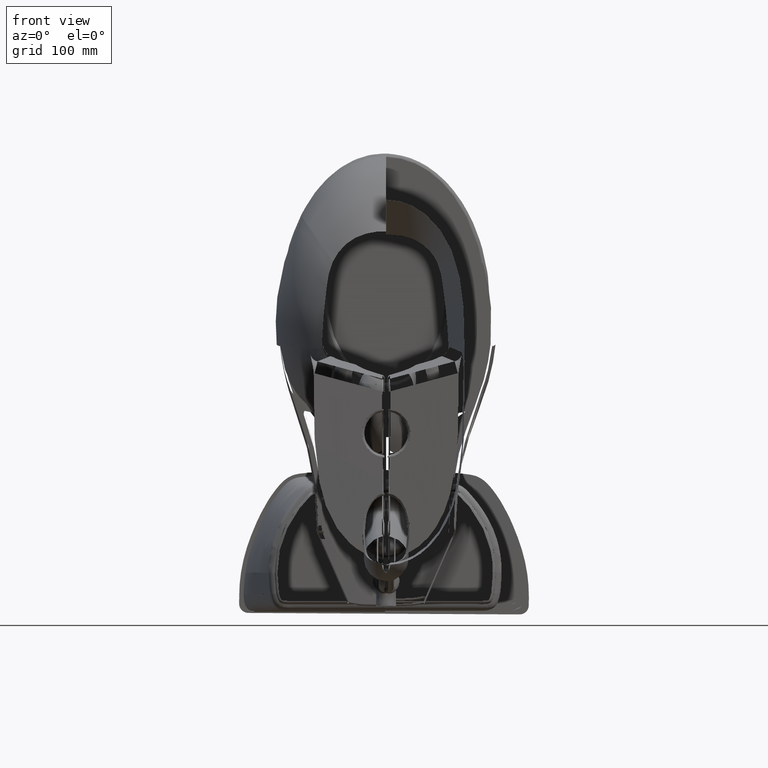
[diagram: clean part render]
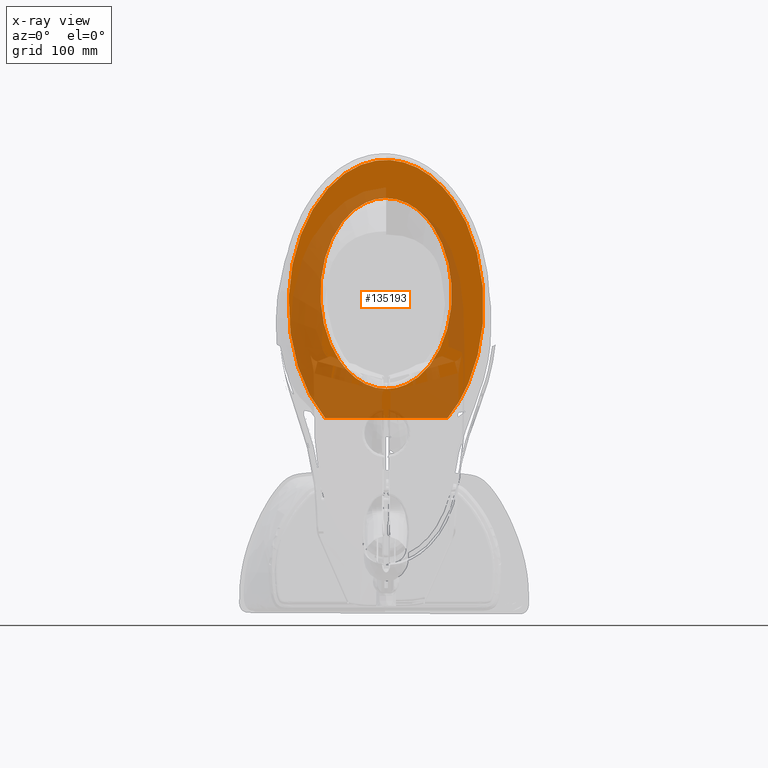
[diagram: x-ray — body ghosted, one internal face saturated and labeled with its STEP entity id]
A machine part, front view, then the same camera in x-ray: the body is ghosted and one INTERNAL B-rep face — a face not visible from any outside direction — is saturated and labeled: STEP entity #135193.
In plain terms, the highlighted planar face has unit normal (0, 1, 0.0099).
Its self-contained STEP definition (entity closure, byte-faithful):
#283 = CARTESIAN_POINT ( 'NONE',  ( -0.5448651244895642600, -11.64607814270232900, 18.04271575063285100 ) ) ;
#917 = CARTESIAN_POINT ( 'NONE',  ( 4.482733622064293000, -8.802090577654817900, 18.07095876836603300 ) ) ;
#1557 = CARTESIAN_POINT ( 'NONE',  ( 3.484143204523304100, -10.06450442116723700, 18.05842201129185700 ) ) ;
#2195 = CARTESIAN_POINT ( 'NONE',  ( 1.776936064902593600, -11.28396359750915000, 18.04631182865277600 ) ) ;
#2839 = CARTESIAN_POINT ( 'NONE',  ( 3.032028010899996400, -10.48361839509824200, 18.05425988181073600 ) ) ;
#3480 = CARTESIAN_POINT ( 'NONE',  ( 4.139498788799653700, -9.298235515574898400, 18.06603166092439500 ) ) ;
#4107 = CARTESIAN_POINT ( 'NONE',  ( 5.669181083561591400, 1.337590555119010400, 18.17165374353527000 ) ) ;
#4741 = CARTESIAN_POINT ( 'NONE',  ( 5.938813809987686400, 0.2744266397301053900, 18.16109569264948200 ) ) ;
#5362 = CARTESIAN_POINT ( 'NONE',  ( 5.709669184124258800, 1.200366766932605700, 18.17029100376817000 ) ) ;
#5849 = CARTESIAN_POINT ( 'NONE',  ( 2.026773299985472400, -8.643798790039371100, 18.07253073307834500 ) ) ;
#5997 = CARTESIAN_POINT ( 'NONE',  ( 4.692979662048218300, 3.620467852612183200, 18.19432450472717700 ) ) ;
#6216 = CARTESIAN_POINT ( 'NONE',  ( -4.194133565427494000, 4.357009125103195000, 18.20163894834461300 ) ) ;
#6471 = CARTESIAN_POINT ( 'NONE',  ( 0.5609533131787400900, 2.896723745306653400, 18.18713716427008000 ) ) ;
#6630 = CARTESIAN_POINT ( 'NONE',  ( 4.546439212595091200, 3.864184137145144000, 18.19674479854656100 ) ) ;
#6850 = CARTESIAN_POINT ( 'NONE',  ( -5.622035835466429700, 1.454933288021186000, 18.17281906378646300 ) ) ;
#7491 = CARTESIAN_POINT ( 'NONE',  ( -4.237684481748930300, 4.296621490480022800, 18.20103925188492200 ) ) ;
#7751 = CARTESIAN_POINT ( 'NONE',  ( 4.185247100731102100, -2.487537213392126300, 18.13366723028346400 ) ) ;
#8123 = CARTESIAN_POINT ( 'NONE',  ( -5.516538663983078900, 1.777472731964994100, 18.17602213299165500 ) ) ;
#8768 = CARTESIAN_POINT ( 'NONE',  ( -5.630497657057717700, 1.427885518271664800, 18.17255045825574600 ) ) ;
#9305 = CARTESIAN_POINT ( 'NONE',  ( -3.580390891632283500, -6.618777353433070900, 18.09264078972401500 ) ) ;
#9409 = CARTESIAN_POINT ( 'NONE',  ( -3.964073292970089000, -9.549267263582347500, 18.06353872977545200 ) ) ;
#10044 = CARTESIAN_POINT ( 'NONE',  ( -5.847032432429306100, -5.543144907493899400, 18.10332266553716000 ) ) ;
#10590 = CARTESIAN_POINT ( 'NONE',  ( -2.929348096177952800, -7.757038661799213300, 18.08133696239054800 ) ) ;
#10685 = CARTESIAN_POINT ( 'NONE',  ( -6.207722577056651800, -2.310861204369362800, 18.13542177525385000 ) ) ;
#11318 = CARTESIAN_POINT ( 'NONE',  ( -4.856797900266204100, -8.193771596454995500, 18.07699986478643300 ) ) ;
#11968 = CARTESIAN_POINT ( 'NONE',  ( -4.948670029156956800, -8.016614174557444600, 18.07875917688720300 ) ) ;
#12608 = CARTESIAN_POINT ( 'NONE',  ( -1.193472481276552900, -11.51113427312726300, 18.04405584982949800 ) ) ;
#13252 = CARTESIAN_POINT ( 'NONE',  ( -1.514330913360443000, -11.40338175828572700, 18.04512591713768500 ) ) ;
#13884 = CARTESIAN_POINT ( 'NONE',  ( -2.309495132627498800, -11.01813296625900700, 18.04895174048958500 ) ) ;
#14519 = CARTESIAN_POINT ( 'NONE',  ( 0.6441397022216088800, -11.62892447292998800, 18.04288609843271000 ) ) ;
#15147 = CARTESIAN_POINT ( 'NONE',  ( -0.08443063738767686600, -11.68030546105204300, 18.04237584593776600 ) ) ;
#15776 = CARTESIAN_POINT ( 'NONE',  ( 3.943891355235857000, -9.550049434710166100, 18.06353095170426200 ) ) ;
#16425 = CARTESIAN_POINT ( 'NONE',  ( 5.384711656167772800, -7.002651980076644000, 18.08882860206405100 ) ) ;
#17073 = CARTESIAN_POINT ( 'NONE',  ( 1.684087229453050700, -11.32502859369509300, 18.04590402119494300 ) ) ;
#17717 = CARTESIAN_POINT ( 'NONE',  ( 2.560154496259746000, -10.84248900499962400, 18.05069601615336000 ) ) ;
#18357 = CARTESIAN_POINT ( 'NONE',  ( 4.564387197185044300, -8.671816559213697300, 18.07225249131316900 ) ) ;
#19006 = CARTESIAN_POINT ( 'NONE',  ( 4.150016263533864000, 4.447656026534658300, 18.20253913200739100 ) ) ;
#19633 = CARTESIAN_POINT ( 'NONE',  ( 4.613383272896768100, 3.754211668461010300, 18.19565268569478900 ) ) ;
#19819 = AXIS2_PLACEMENT_3D ( 'NONE', #100053, #41799, #70964 ) ;
#20262 = CARTESIAN_POINT ( 'NONE',  ( 6.024362229227927300, -4.637109726050124600, 18.11232028888606400 ) ) ;
#20891 = CARTESIAN_POINT ( 'NONE',  ( 5.878114198297750700, -5.383687148297831000, 18.10490619043286700 ) ) ;
#23565 = CARTESIAN_POINT ( 'NONE',  ( -4.185055530901575300, -3.863041204269291700, 18.12000740924212700 ) ) ;
#23669 = CARTESIAN_POINT ( 'NONE',  ( -5.890797774561014500, 0.4547092658194275000, 18.16288605605990700 ) ) ;
#23895 = DIRECTION ( 'NONE',  ( 1.000000000000000000, -1.327403662622375700E-009, -1.341280706663420200E-009 ) ) ;
#24205 = CARTESIAN_POINT ( 'NONE',  ( -3.280464377965355300, -7.216287820149607200, 18.08670704232126200 ) ) ;
#24300 = CARTESIAN_POINT ( 'NONE',  ( -4.918144012706156900, -8.075968317828834800, 18.07816974370789300 ) ) ;
#24941 = CARTESIAN_POINT ( 'NONE',  ( -3.917877003934972600, -9.605831963854074100, 18.06297699792947900 ) ) ;
#25589 = CARTESIAN_POINT ( 'NONE',  ( -4.362709294359103900, -9.011806078525966200, 18.06887614090191000 ) ) ;
#26240 = CARTESIAN_POINT ( 'NONE',  ( -6.106644131376211400, -4.099022999966866400, 18.11766392770165300 ) ) ;
#26884 = CARTESIAN_POINT ( 'NONE',  ( -4.319769722367872200, -9.073970473057707800, 18.06825879970963600 ) ) ;
#27522 = CARTESIAN_POINT ( 'NONE',  ( 0.9872206027975373200, -11.55884740104251700, 18.04358201819715300 ) ) ;
#28172 = CARTESIAN_POINT ( 'NONE',  ( 1.346572889207221700, -11.45355012735632100, 18.04462770213420700 ) ) ;
#28657 = CARTESIAN_POINT ( 'NONE',  ( -0.03180420980437018800, -9.250078848187008900, 18.06650989989406500 ) ) ;
#28800 = CARTESIAN_POINT ( 'NONE',  ( -2.765436845307416300, -10.71316916854455500, 18.05198027050493400 ) ) ;
#29427 = CARTESIAN_POINT ( 'NONE',  ( -2.949208404455481200, -10.57236393327643500, 18.05337857703736800 ) ) ;
#30062 = CARTESIAN_POINT ( 'NONE',  ( 4.800290340583660300, -8.267056456122515900, 18.07627207589954200 ) ) ;
#30696 = CARTESIAN_POINT ( 'NONE',  ( 4.212817018123667300, -9.198098615095597500, 18.06702609869279600 ) ) ;
#31337 = CARTESIAN_POINT ( 'NONE',  ( 4.881332226055613800, -8.115808806627356400, 18.07777408343391600 ) ) ;
#31984 = CARTESIAN_POINT ( 'NONE',  ( 3.565841027208993500, -9.980823680229828900, 18.05925302649366400 ) ) ;
#32625 = CARTESIAN_POINT ( 'NONE',  ( 2.218061884033391400, -11.05732563890351700, 18.04856252053685500 ) ) ;
#33089 = EDGE_LOOP ( 'NONE', ( #121490, #86100 ) ) ;
#33268 = CARTESIAN_POINT ( 'NONE',  ( 6.051576664398919700, -4.462137126984140800, 18.11405790382648800 ) ) ;
#33896 = CARTESIAN_POINT ( 'NONE',  ( 3.907062596856586200, 4.752521363311426900, 18.20556668394560500 ) ) ;
#34537 = CARTESIAN_POINT ( 'NONE',  ( 6.197620649414067100, -2.921870342821840900, 18.12935395939416600 ) ) ;
#35170 = CARTESIAN_POINT ( 'NONE',  ( 6.077270167809374800, -4.286622340144433900, 18.11580090311826700 ) ) ;
#35646 = CARTESIAN_POINT ( 'NONE',  ( 4.006009806351968000, -1.061485767355905500, 18.14782903850236200 ) ) ;
#35803 = CARTESIAN_POINT ( 'NONE',  ( 5.865364183193151800, 0.6163876288646926700, 18.16449163325021100 ) ) ;
#36021 = CARTESIAN_POINT ( 'NONE',  ( -4.302986283769625300, 4.205063474145186200, 18.20013000914584800 ) ) ;
#36280 = CARTESIAN_POINT ( 'NONE',  ( 3.823129288363268600, -0.3787701906236614600, 18.15460893924094800 ) ) ;
#37816 = CARTESIAN_POINT ( 'NONE',  ( -0.4969714076311023700, 2.902277371506063500, 18.18719231753346200 ) ) ;
#38457 = CARTESIAN_POINT ( 'NONE',  ( -4.005835021401575900, -5.289081977925196300, 18.10584570700787300 ) ) ;
#38551 = CARTESIAN_POINT ( 'NONE',  ( -5.950305007006444500, 0.1686894856293171300, 18.16004565566304400 ) ) ;
#39097 = CARTESIAN_POINT ( 'NONE',  ( -2.527576699391731900, -8.226821487685040100, 18.07667165038386200 ) ) ;
#39191 = CARTESIAN_POINT ( 'NONE',  ( -4.650720700023007300, -8.558157968110141000, 18.07338122239388100 ) ) ;
#39836 = CARTESIAN_POINT ( 'NONE',  ( -3.933350860428032300, -9.587008392853945800, 18.06316393075582000 ) ) ;
#40477 = CARTESIAN_POINT ( 'NONE',  ( -5.356798223458125300, -7.113720043762201700, 18.08772562344572400 ) ) ;
#41113 = CARTESIAN_POINT ( 'NONE',  ( -5.961636066608784600, 0.1111797179822387200, 18.15947453863406500 ) ) ;
#41662 = EDGE_CURVE ( 'NONE', #151989, #168138, #165470, .T. ) ;
#41754 = CARTESIAN_POINT ( 'NONE',  ( -2.738955349145451500, -10.73263650569613700, 18.05178694456178000 ) ) ;
#41799 = DIRECTION ( 'NONE',  ( 1.327603848764030500E-009, -0.009930293714449041400, 0.9999506934178028500 ) ) ;
#42395 = CARTESIAN_POINT ( 'NONE',  ( 1.233541097527991200, -11.49029213614324100, 18.04426282535452200 ) ) ;
#43034 = CARTESIAN_POINT ( 'NONE',  ( -1.906124353629065300, -11.23558597024193000, 18.04679226127888500 ) ) ;
#43658 = CARTESIAN_POINT ( 'NONE',  ( -2.712392576124709600, -10.75200774050434300, 18.05159457299007600 ) ) ;
#44292 = CARTESIAN_POINT ( 'NONE',  ( -0.9460209764356217700, -11.57420544643136000, 18.04342950334215000 ) ) ;
#44915 = CARTESIAN_POINT ( 'NONE',  ( 2.435342477242716400, -10.92618675599255700, 18.04986483208561800 ) ) ;
#45549 = CARTESIAN_POINT ( 'NONE',  ( 1.795403946042124500, -11.27557139341021400, 18.04639516978914300 ) ) ;
#46201 = CARTESIAN_POINT ( 'NONE',  ( 2.980629941739805200, -10.52670108700455200, 18.05383203699877000 ) ) ;
#46850 = CARTESIAN_POINT ( 'NONE',  ( 4.550896725205750400, -8.693616116899290700, 18.07203600464619300 ) ) ;
#47488 = CARTESIAN_POINT ( 'NONE',  ( 3.435110802413475600, -10.11388345879322300, 18.05793163883139500 ) ) ;
#48128 = CARTESIAN_POINT ( 'NONE',  ( 6.147941679423954800, -1.127914392745287300, 18.14716934737105100 ) ) ;
#48775 = CARTESIAN_POINT ( 'NONE',  ( 6.184686987351477100, -1.604890195950797300, 18.14243260394912500 ) ) ;
#49410 = CARTESIAN_POINT ( 'NONE',  ( 6.051898496316543900, -0.3632169908240746600, 18.15476339173869000 ) ) ;
#49901 = CARTESIAN_POINT ( 'NONE',  ( 2.086347469669645800, 2.270670006669409900, 18.18091995818897600 ) ) ;
#50049 = CARTESIAN_POINT ( 'NONE',  ( 5.263786669210015000, 2.470770787255068200, 18.18290711147510000 ) ) ;
#50259 = CARTESIAN_POINT ( 'NONE',  ( -4.388427821594895300, 4.080608014523469300, 18.19889406905088300 ) ) ;
#50530 = CARTESIAN_POINT ( 'NONE',  ( 2.929355849685826700, 1.406661784264488200, 18.17233967858464900 ) ) ;
#50654 = VERTEX_POINT ( 'NONE', #64208 ) ;
#50676 = CARTESIAN_POINT ( 'NONE',  ( 6.117016773030992600, -3.992281599507463000, 18.11872393719696800 ) ) ;
#50902 = CARTESIAN_POINT ( 'NONE',  ( -5.010941201580402900, 2.995950589806834600, 18.18812257196463700 ) ) ;
#51169 = CARTESIAN_POINT ( 'NONE',  ( 3.788687579485708700, -6.024126391377953900, 18.09854612982401500 ) ) ;
#51800 = CARTESIAN_POINT ( 'NONE',  ( 1.602890789431929300, 2.579542861263110600, 18.18398730823937000 ) ) ;
#52800 = CARTESIAN_POINT ( 'NONE',  ( -5.604893030555656400, 1.509048162536243300, 18.17335646685947000 ) ) ;
#53347 = CARTESIAN_POINT ( 'NONE',  ( -1.541008923091338900, 2.596312659326811100, 18.18415384964448800 ) ) ;
#53445 = CARTESIAN_POINT ( 'NONE',  ( -6.120553998876991900, -3.980945992697132700, 18.11883652489998700 ) ) ;
#53983 = CARTESIAN_POINT ( 'NONE',  ( -2.876734547641732300, 1.441351934757008100, 18.17268418666535400 ) ) ;
#54079 = CARTESIAN_POINT ( 'NONE',  ( -6.152556197127018400, -1.235859611355035700, 18.14609738312048400 ) ) ;
#54712 = CARTESIAN_POINT ( 'NONE',  ( -6.141398892070872000, -1.117206631990683300, 18.14727570013963700 ) ) ;
#55363 = CARTESIAN_POINT ( 'NONE',  ( -4.543616812031787700, -8.734958391178295800, 18.07162545555091200 ) ) ;
#56001 = CARTESIAN_POINT ( 'NONE',  ( -5.687131060239137200, -6.156579943445893700, 18.09723077487282300 ) ) ;
#56641 = CARTESIAN_POINT ( 'NONE',  ( -1.961734229001503600, -11.20867829158536100, 18.04705947568037400 ) ) ;
#57280 = CARTESIAN_POINT ( 'NONE',  ( -1.850315802071199400, -11.26201071498430500, 18.04652984278921900 ) ) ;
#57922 = CARTESIAN_POINT ( 'NONE',  ( -1.401101005524625800, -11.44384750676408800, 18.04472406040540700 ) ) ;
#58554 = CARTESIAN_POINT ( 'NONE',  ( -1.306902031502606300, -11.47588500163686700, 18.04440590285912900 ) ) ;
#59181 = CARTESIAN_POINT ( 'NONE',  ( -2.632994330516809100, -10.80933158367501800, 18.05102530221634200 ) ) ;
#59815 = CARTESIAN_POINT ( 'NONE',  ( 1.739823094847456900, -11.30054703445587800, 18.04614714218224200 ) ) ;
#60466 = CARTESIAN_POINT ( 'NONE',  ( 3.269781957239547200, -10.27462189066112200, 18.05633538050519200 ) ) ;
#61112 = CARTESIAN_POINT ( 'NONE',  ( 5.409433682857771200, -6.937653531808237500, 18.08947408754020000 ) ) ;
#61755 = CARTESIAN_POINT ( 'NONE',  ( 4.631833489077615200, -8.561776847880572900, 18.07334527175868600 ) ) ;
#62395 = CARTESIAN_POINT ( 'NONE',  ( 3.467870769966432800, -10.08100312040593500, 18.05825816630547500 ) ) ;
#63035 = CARTESIAN_POINT ( 'NONE',  ( 4.783887678717744200, 3.462168416514836100, 18.19275246719941900 ) ) ;
#63657 = CARTESIAN_POINT ( 'NONE',  ( 6.023045067000296600, -0.1886610949754344600, 18.15649686856417600 ) ) ;
#63681 = VECTOR ( 'NONE', #23895, 39.37007874015748100 ) ;
#64208 = CARTESIAN_POINT ( 'NONE',  ( -3.886152463397930300, 4.752521373657540200, 18.20556669439515900 ) ) ;
#64300 = CARTESIAN_POINT ( 'NONE',  ( 6.068964452863428800, -4.345178402974688900, 18.11521939555447200 ) ) ;
#64945 = CARTESIAN_POINT ( 'NONE',  ( 5.075567926906658500, 2.894149184537824700, 18.18711159087086000 ) ) ;
#65431 = CARTESIAN_POINT ( 'NONE',  ( 3.233077766713740300, -7.257415581452756100, 18.08629860278543300 ) ) ;
#65579 = CARTESIAN_POINT ( 'NONE',  ( 4.932593948087813400, 3.181809200398992000, 18.18996828036167900 ) ) ;
#65796 = CARTESIAN_POINT ( 'NONE',  ( -5.259272581576704300, 2.452949311267174500, 18.18273014422892300 ) ) ;
#67604 = CARTESIAN_POINT ( 'NONE',  ( -3.232860833485826200, 0.9068427813972440600, 18.16737609252677300 ) ) ;
#68231 = CARTESIAN_POINT ( 'NONE',  ( -3.822878990917323100, -5.971850777145669500, 18.09906527772992400 ) ) ;
#68328 = CARTESIAN_POINT ( 'NONE',  ( -5.860443193379018600, -5.486613963679213100, 18.10388406211154000 ) ) ;
#68874 = CARTESIAN_POINT ( 'NONE',  ( -0.5607690683287401800, -9.247300734992126800, 18.06653748943661600 ) ) ;
#68978 = CARTESIAN_POINT ( 'NONE',  ( -5.565800701894851000, -6.533838862361220900, 18.09348429811455700 ) ) ;
#69524 = CARTESIAN_POINT ( 'NONE',  ( -2.086162151330314800, -8.621185254019685800, 18.07275530866614600 ) ) ;
#69620 = CARTESIAN_POINT ( 'NONE',  ( -3.586133815896591400, -9.981320495261753600, 18.05924810222666100 ) ) ;
#70262 = CARTESIAN_POINT ( 'NONE',  ( -4.276514051212129400, -9.135793769378755900, 18.06764484588938300 ) ) ;
#70336 = B_SPLINE_CURVE_WITH_KNOTS ( 'NONE', 13,
 ( #97362, #37816, #141370, #53347, #112209, #171689, #53983, #67604, #96709, #186542, #171064, #185907, #172337, #23565, #113481, #38457, #68231, #9305, #24205, #10590, #39097, #69524, #142649, #157482, #68874, #140726 ),
 .UNSPECIFIED., .F., .F.,
 ( 14, 12, 14 ),
 ( 0.0000000000000000000, 0.5000000000000001100, 1.000000000000000000 ),
 .UNSPECIFIED. ) ;
#70918 = CARTESIAN_POINT ( 'NONE',  ( -5.967200772684504900, 0.08242196689736407100, 18.15918895164529800 ) ) ;
#70964 = DIRECTION ( 'NONE',  ( 0.0000000000000000000, -0.9999506934178028500, -0.009930293714449041400 ) ) ;
#71555 = CARTESIAN_POINT ( 'NONE',  ( 0.8728604227675442800, -11.58473606781854800, 18.04332492360756400 ) ) ;
#72193 = CARTESIAN_POINT ( 'NONE',  ( -1.003299734375848500, -11.56069535716844100, 18.04356366918794300 ) ) ;
#72814 = CARTESIAN_POINT ( 'NONE',  ( -2.721279264439030700, -10.74555304508689700, 18.05165867318376600 ) ) ;
#73453 = CARTESIAN_POINT ( 'NONE',  ( -0.3147849885883642300, -11.66990300959234600, 18.04247915073554500 ) ) ;
#74087 = CARTESIAN_POINT ( 'NONE',  ( -0.7363338865150610400, -11.61789472861282100, 18.04299563426693700 ) ) ;
#74718 = CARTESIAN_POINT ( 'NONE',  ( 4.875185321866936800, -8.127468803017333000, 18.07765829054386200 ) ) ;
#75360 = CARTESIAN_POINT ( 'NONE',  ( 3.866412745605972000, -9.643050231929724000, 18.06260738103694800 ) ) ;
#76002 = CARTESIAN_POINT ( 'NONE',  ( 5.497759025193626100, -6.702085994625823800, 18.09181345760310600 ) ) ;
#76653 = CARTESIAN_POINT ( 'NONE',  ( 4.711006441710919600, -8.427529072844583500, 18.07467845722500500 ) ) ;
#77292 = CARTESIAN_POINT ( 'NONE',  ( 4.035375401309022600, -9.435892261953656000, 18.06466462173529000 ) ) ;
#77924 = CARTESIAN_POINT ( 'NONE',  ( 4.859138170023006100, 3.323190308630628000, 18.19137230561730000 ) ) ;
#78218 = B_SPLINE_CURVE_WITH_KNOTS ( 'NONE', 3,
 ( #153781, #138923, #95549, #169881, #6216, #81291, #109764, #7491, #36021, #50259, #124673, #125949, #154414, #140827, #80657, #139549, #155688, #50902, #170513, #81926, #185368, #82560, #96811, #65796, #169242, #8123, #111670, #52800, #6850, #8768, #156321, #186006, #23669, #83202, #38551, #41113, #70918, #85781, #99363, #156951, #54712, #54079, #143384, #112958, #10685, #114873, #144659, #98733, #127840, #53445, #26240, #187925, #172428, #100640, #100009, #144026, #68328, #10044, #84485, #114221, #56001, #68978, #173689, #159492, #174349, #113575, #40477, #188555, #171798, #189207, #11968, #83840, #24300, #115518, #11318, #129757, #142747, #39191, #158840, #186640, #55363, #128475, #25589, #26884, #129114, #70262, #142111, #85127, #98105, #9409, #39836, #24941, #157584, #187284, #158219, #69620, #173062, #86435, #176268, #189853, #103823, #161417, #190497, #160784, #177530, #118066, #29427, #88328, #28800, #41754, #72814, #43658, #59181, #145938, #88958, #162683, #13884, #162049, #132323, #174993, #118704, #56641, #43034, #146571, #57280, #87697, #191125, #13252, #132950, #147200, #57922, #58554, #12608, #117429, #72193, #101939, #44292, #191745, #74087, #147829, #283, #101297, #131683, #73453, #102569, #15147, #130405, #176898, #116164, #160143, #103186, #14519, #145294, #175627, #71555, #27522, #131044, #42395, #87069, #116789, #28172, #180723, #150382, #17073, #59815, #2195, #45549, #134880, #104465, #105720, #106362, #32625, #90226, #119336, #44915, #17717, #179444, #163946, #92147, #91507, #135506, #46201, #2839, #121271, #136151, #178801, #60466, #165226, #47488, #62395, #1557, #31984, #180075, #163308, #151026, #165865, #75360, #15776, #77292, #3480, #107020, #30696, #90877, #134232, #120623, #917, #119961, #46850, #18357, #61755, #76653, #30062, #133588, #148468, #74718, #31337, #105086, #178170, #89579, #149088, #16425, #149739, #61112, #164585, #76002, #94064, #152933, #181994, #152292, #169035, #109548, #20891, #79813, #20262, #33268, #64300, #35170, #50676, #137434, #80434, #154199, #34537, #167757, #124446, #183259, #48775, #48128, #138066, #49410, #63657, #79184, #182625, #4741, #35803, #138703, #5362, #123825, #4107, #108926, #167130, #93436, #78550, #50049, #108286, #151663, #123206, #166496, #153562, #64945, #168400, #139332, #65579, #94695, #77924, #63035, #5997, #183878, #95328, #19633, #6630, #110166, #121908, #136797, #181351, #92802, #107648, #19006, #122555, #33896 ),
 .UNSPECIFIED., .F., .F.,
 ( 4, 1, 1, 1, 2, 2, 1, 1, 1, 2, 2, 1, 1, 1, 1, 2, 2, 1, 1, 1, 2, 2, 1, 1, 1, 2, 2, 1, 2, 2, 2, 2, 1, 1, 2, 2, 1, 1, 1, 2, 2, 1, 1, 1, 2, 2, 1, 1, 1, 1, 2, 2, 1, 1, 2, 2, 1, 1, 2, 2, 1, 1, 2, 2, 1, 1, 2, 2, 1, 1, 1, 2, 2, 1, 1, 1, 2, 2, 1, 1, 1, 2, 2, 1, 1, 2, 2, 1, 1, 2, 2, 1, 1, 2, 2, 1, 2, 2, 2, 2, 2, 2, 1, 2, 2, 1, 1, 2, 2, 1, 1, 2, 2, 1, 1, 2, 2, 1, 1, 2, 2, 1, 1, 2, 2, 1, 1, 2, 2, 1, 1, 2, 2, 1, 1, 2, 2, 1, 1, 2, 2, 1, 1, 1, 2, 2, 1, 1, 1, 1, 2, 2, 1, 1, 1, 2, 2, 1, 1, 2, 2, 1, 2, 2, 2, 2, 1, 1, 2, 2, 1, 1, 1, 2, 2, 1, 1, 1, 1, 2, 2, 1, 1, 2, 2, 1, 1, 2, 2, 1, 1, 1, 2, 2, 4 ),
 ( 0.0000000000000000000, 0.007812500000000171700, 0.01171875000000022700, 0.01367187500000025700, 0.01464843750000025500, 0.01562500000000025000, 0.02343750000000033000, 0.02734375000000037100, 0.02929687500000038200, 0.03027343750000037800, 0.03125000000000037500, 0.04687500000000013900, 0.05468750000000003500, 0.05859374999999998600, 0.06054687499999995800, 0.06152343749999991000, 0.06249999999999986100, 0.07812499999999957000, 0.08593749999999941700, 0.08984374999999934800, 0.09179687499999930600, 0.09374999999999926400, 0.1093749999999990400, 0.1171874999999989500, 0.1210937499999988900, 0.1230468749999988600, 0.1249999999999988300, 0.1406249999999986400, 0.1484374999999985600, 0.1562499999999984500, 0.1718749999999982800, 0.1874999999999981100, 0.2031249999999979700, 0.2109374999999978900, 0.2148437499999978600, 0.2187499999999978400, 0.2343749999999977200, 0.2421874999999976400, 0.2460937499999975600, 0.2480468749999975000, 0.2499999999999974700, 0.2656249999999970600, 0.2734374999999968900, 0.2773437499999968400, 0.2792968749999967800, 0.2812499999999966700, 0.2968749999999966100, 0.3046874999999966100, 0.3085937499999965600, 0.3105468749999966100, 0.3115234374999966700, 0.3124999999999967800, 0.3203124999999976100, 0.3242187499999980000, 0.3261718749999981700, 0.3281249999999983300, 0.3359374999999991100, 0.3398437499999995000, 0.3417968749999996100, 0.3437499999999997800, 0.3515625000000003300, 0.3554687500000006700, 0.3574218750000008900, 0.3593750000000010500, 0.3671875000000017800, 0.3710937500000022200, 0.3730468750000023900, 0.3750000000000025000, 0.3828125000000032800, 0.3867187500000035500, 0.3886718750000036600, 0.3896484375000036600, 0.3906250000000037200, 0.3984375000000033900, 0.4023437500000031600, 0.4042968750000030000, 0.4052734375000028900, 0.4062500000000028300, 0.4140625000000017800, 0.4179687500000012800, 0.4199218750000010000, 0.4208984375000009400, 0.4218750000000008300, 0.4296874999999998300, 0.4335937499999992800, 0.4355468749999989500, 0.4374999999999986700, 0.4453124999999974500, 0.4492187499999968400, 0.4511718749999965600, 0.4531249999999962300, 0.4609374999999953400, 0.4648437499999947800, 0.4667968749999945600, 0.4687499999999943400, 0.4765624999999933900, 0.4804687499999928900, 0.4843749999999924500, 0.4921874999999915100, 0.4999999999999905600, 0.5078124999999896700, 0.5156249999999886800, 0.5234374999999877900, 0.5273437499999872300, 0.5312499999999867900, 0.5390624999999859000, 0.5429687499999854600, 0.5449218749999852300, 0.5468749999999850100, 0.5546874999999843500, 0.5585937499999840100, 0.5605468749999837900, 0.5624999999999835700, 0.5703124999999830100, 0.5742187499999826800, 0.5761718749999824600, 0.5781249999999822400, 0.5859374999999813500, 0.5898437499999810200, 0.5917968749999807900, 0.5937499999999806800, 0.6015624999999799000, 0.6054687499999795700, 0.6074218749999793500, 0.6093749999999792400, 0.6171874999999786800, 0.6210937499999785700, 0.6230468749999784600, 0.6249999999999784600, 0.6328124999999782400, 0.6367187499999782400, 0.6386718749999781300, 0.6406249999999781300, 0.6484374999999779100, 0.6523437499999779100, 0.6542968749999779100, 0.6562499999999778000, 0.6640624999999773500, 0.6679687499999772400, 0.6699218749999772400, 0.6718749999999771300, 0.6796874999999770200, 0.6835937499999769100, 0.6855468749999769100, 0.6865234374999769100, 0.6874999999999769100, 0.7031249999999780200, 0.7109374999999785700, 0.7148437499999789100, 0.7167968749999790200, 0.7177734374999790200, 0.7187499999999790200, 0.7343749999999804600, 0.7421874999999812400, 0.7460937499999815700, 0.7480468749999816800, 0.7499999999999817900, 0.7656249999999830100, 0.7734374999999835700, 0.7773437499999839000, 0.7812499999999842300, 0.7968749999999852300, 0.8046874999999856800, 0.8124999999999862300, 0.8281249999999872300, 0.8437499999999882300, 0.8593749999999892300, 0.8671874999999897900, 0.8710937499999900100, 0.8749999999999903400, 0.8906249999999913400, 0.8984374999999919000, 0.9023437499999922300, 0.9042968749999923400, 0.9062499999999924500, 0.9218749999999936700, 0.9296874999999941200, 0.9335937499999944500, 0.9355468749999945600, 0.9365234374999945600, 0.9374999999999946700, 0.9453124999999952300, 0.9492187499999955600, 0.9511718749999956700, 0.9531249999999958900, 0.9609374999999963400, 0.9648437499999966700, 0.9667968749999967800, 0.9687499999999970000, 0.9765624999999975600, 0.9804687499999978900, 0.9824218749999981100, 0.9833984374999982200, 0.9843749999999983300, 1.000000000000000000 ),
 .UNSPECIFIED. ) ;
#78550 = CARTESIAN_POINT ( 'NONE',  ( 5.337601598915662200, 2.292651039949825000, 18.18113824275314600 ) ) ;
#78930 = FACE_BOUND ( 'NONE', #166552, .T. ) ;
#79184 = CARTESIAN_POINT ( 'NONE',  ( 6.003036424951337900, -0.07251152494062232400, 18.15765032480897600 ) ) ;
#79813 = CARTESIAN_POINT ( 'NONE',  ( 5.952932613175962100, -5.042120715233389600, 18.10829821258588600 ) ) ;
#80288 = CARTESIAN_POINT ( 'NONE',  ( 4.109234914462598800, -4.641234959500000200, 18.11227932462874100 ) ) ;
#80434 = CARTESIAN_POINT ( 'NONE',  ( 6.179605527903871300, -3.280168391704249200, 18.12579577911364800 ) ) ;
#80657 = CARTESIAN_POINT ( 'NONE',  ( -4.573441045289281500, 3.790148495237110700, 18.19600957873348400 ) ) ;
#80924 = CARTESIAN_POINT ( 'NONE',  ( 3.979625806885827000, -5.345543099090551900, 18.10528499324291500 ) ) ;
#81291 = CARTESIAN_POINT ( 'NONE',  ( -4.215954278316691500, 4.326848144590779400, 18.20133942620996900 ) ) ;
#81553 = CARTESIAN_POINT ( 'NONE',  ( 3.539045391214685300, -6.665823419377953300, 18.09217357598268100 ) ) ;
#81926 = CARTESIAN_POINT ( 'NONE',  ( -5.131229248788962100, 2.739478212392987700, 18.18557560050451000 ) ) ;
#82560 = CARTESIAN_POINT ( 'NONE',  ( -5.159165427426235500, 2.677605804007449300, 18.18496115905750100 ) ) ;
#83202 = CARTESIAN_POINT ( 'NONE',  ( -5.933032423948057000, 0.2548061637407143000, 18.16090086171475100 ) ) ;
#83840 = CARTESIAN_POINT ( 'NONE',  ( -4.930378853716071300, -8.052250295899760600, 18.07840528226181600 ) ) ;
#84485 = CARTESIAN_POINT ( 'NONE',  ( -5.840219663517867600, -5.571423709402339800, 18.10304183487246700 ) ) ;
#85127 = CARTESIAN_POINT ( 'NONE',  ( -4.115732112283251500, -9.357251426277725800, 18.06544559766018300 ) ) ;
#85781 = CARTESIAN_POINT ( 'NONE',  ( -6.016614011530201400, -0.1776779423954614700, 18.15660595585782000 ) ) ;
#86100 = ORIENTED_EDGE ( 'NONE', *, *, #107567, .F. ) ;
#86435 = CARTESIAN_POINT ( 'NONE',  ( -3.537319885067235600, -10.03230599533216800, 18.05874177620577500 ) ) ;
#87069 = CARTESIAN_POINT ( 'NONE',  ( 1.290115486287172000, -11.47217691989886900, 18.04444272356759500 ) ) ;
#87697 = CARTESIAN_POINT ( 'NONE',  ( -1.757585390473218400, -11.30472444456370900, 18.04610566187082900 ) ) ;
#88146 = EDGE_CURVE ( 'NONE', #50654, #101593, #78218, .T. ) ;
#88328 = CARTESIAN_POINT ( 'NONE',  ( -2.826998586734997600, -10.66709768539938200, 18.05243779650519200 ) ) ;
#88958 = CARTESIAN_POINT ( 'NONE',  ( -2.400178617863344400, -10.96298691312862400, 18.04949938411718300 ) ) ;
#89579 = CARTESIAN_POINT ( 'NONE',  ( 5.277737623854363000, -7.272588299143845500, 18.08614792309841600 ) ) ;
#90226 = CARTESIAN_POINT ( 'NONE',  ( 2.236135919288392900, -11.04684531219065100, 18.04866659836707000 ) ) ;
#90877 = CARTESIAN_POINT ( 'NONE',  ( 4.227339973540845900, -9.177958697402958800, 18.06722610383316800 ) ) ;
#91507 = CARTESIAN_POINT ( 'NONE',  ( 2.754711074826934300, -10.70419018625962900, 18.05206943150393800 ) ) ;
#92147 = CARTESIAN_POINT ( 'NONE',  ( 2.666279579081511500, -10.76801911585418900, 18.05143556034896300 ) ) ;
#92802 = CARTESIAN_POINT ( 'NONE',  ( 4.279945756892176200, 4.264592653578849200, 18.20072116913554800 ) ) ;
#93436 = CARTESIAN_POINT ( 'NONE',  ( 5.478033024131749000, 1.930587042084033400, 18.17754266343875400 ) ) ;
#94064 = CARTESIAN_POINT ( 'NONE',  ( 5.607019643519140400, -6.382139843273298800, 18.09499077337635600 ) ) ;
#94695 = CARTESIAN_POINT ( 'NONE',  ( 4.920363209532920800, 3.205545842647335300, 18.19020400382995100 ) ) ;
#95179 = CARTESIAN_POINT ( 'NONE',  ( 3.580453158162322700, 0.2683041862341338800, 18.16103489501968200 ) ) ;
#95328 = CARTESIAN_POINT ( 'NONE',  ( 4.626784216669329400, 3.731983908728191900, 18.19543194661035600 ) ) ;
#95549 = CARTESIAN_POINT ( 'NONE',  ( -4.039113757764234900, 4.564248335263844300, 18.20369699584014000 ) ) ;
#95809 = CARTESIAN_POINT ( 'NONE',  ( 0.03198855563507874800, 2.899500548392874900, 18.18716474080232000 ) ) ;
#96445 = CARTESIAN_POINT ( 'NONE',  ( 1.541212764578582700, -8.946892139338583400, 18.06952077933110300 ) ) ;
#96709 = CARTESIAN_POINT ( 'NONE',  ( -3.538870850459054900, 0.3152401226457874400, 18.16150101509055400 ) ) ;
#96811 = CARTESIAN_POINT ( 'NONE',  ( -5.164696718294014700, 2.665253663363693600, 18.18483849263199300 ) ) ;
#97362 = CARTESIAN_POINT ( 'NONE',  ( 0.03198855563507874800, 2.899500548392874900, 18.18716474080232000 ) ) ;
#98105 = CARTESIAN_POINT ( 'NONE',  ( -4.009967908551193900, -9.492335228615596400, 18.06410410954231000 ) ) ;
#98733 = CARTESIAN_POINT ( 'NONE',  ( -6.177981190194789600, -3.388495720150730900, 18.12472002028887600 ) ) ;
#99363 = CARTESIAN_POINT ( 'NONE',  ( -6.073242578108382100, -0.5271558236543106800, 18.15313536680251600 ) ) ;
#100009 = CARTESIAN_POINT ( 'NONE',  ( -5.924561468911476500, -5.202763652492162500, 18.10670291814584600 ) ) ;
#100053 = CARTESIAN_POINT ( 'NONE',  ( 9.578613704956692000E-005, -2.432666698077165600, 18.13421214304094400 ) ) ;
#100640 = CARTESIAN_POINT ( 'NONE',  ( -6.005179566841555100, -4.801647597534269200, 18.11068631489986600 ) ) ;
#101297 = CARTESIAN_POINT ( 'NONE',  ( -0.5064310964357073800, -11.65086686141780000, 18.04266819485365000 ) ) ;
#101593 = VERTEX_POINT ( 'NONE', #152322 ) ;
#101939 = CARTESIAN_POINT ( 'NONE',  ( -0.9651642331341352400, -11.56978201236780800, 18.04347343153299500 ) ) ;
#102569 = CARTESIAN_POINT ( 'NONE',  ( -0.1612890311343314600, -11.67826801076759200, 18.04239607951720700 ) ) ;
#103186 = CARTESIAN_POINT ( 'NONE',  ( 0.5293434316739649100, -11.64515456251827000, 18.04272492108138700 ) ) ;
#103823 = CARTESIAN_POINT ( 'NONE',  ( -3.239424177500362500, -10.32220875522058100, 18.05586281430419100 ) ) ;
#104356 = FACE_OUTER_BOUND ( 'NONE', #33089, .T. ) ;
#104465 = CARTESIAN_POINT ( 'NONE',  ( 1.999075994054235700, -11.17803844499968100, 18.04736374810059000 ) ) ;
#105086 = CARTESIAN_POINT ( 'NONE',  ( 4.986488267386350000, -7.915348621951245000, 18.07976480996211800 ) ) ;
#105720 = CARTESIAN_POINT ( 'NONE',  ( 2.127104279108289900, -11.10890347360448500, 18.04805031235464000 ) ) ;
#106362 = CARTESIAN_POINT ( 'NONE',  ( 2.181713512894892100, -11.07811176423866300, 18.04835609807736300 ) ) ;
#107020 = CARTESIAN_POINT ( 'NONE',  ( 4.183564240668197900, -9.238281186091974500, 18.06662705432393100 ) ) ;
#107567 = EDGE_CURVE ( 'NONE', #50654, #101593, #142410, .T. ) ;
#107648 = CARTESIAN_POINT ( 'NONE',  ( 4.272691308827675400, 4.274860020383087500, 18.20082313214066600 ) ) ;
#108286 = CARTESIAN_POINT ( 'NONE',  ( 5.225979400082790600, 2.559102598000786000, 18.18378431560226000 ) ) ;
#108926 = CARTESIAN_POINT ( 'NONE',  ( 5.660914772917213800, 1.365025104157839600, 18.17192619010952700 ) ) ;
#109548 = CARTESIAN_POINT ( 'NONE',  ( 5.815203872293683900, -5.637069051406980300, 18.10238990972738900 ) ) ;
#109764 = CARTESIAN_POINT ( 'NONE',  ( -4.230470470345695200, 4.306687931005277500, 18.20113921951549000 ) ) ;
#110166 = CARTESIAN_POINT ( 'NONE',  ( 4.464457860021122200, 3.993769909497538100, 18.19803168688813200 ) ) ;
#111670 = CARTESIAN_POINT ( 'NONE',  ( -5.578923306219944100, 1.590012428843035300, 18.17416050541419300 ) ) ;
#112209 = CARTESIAN_POINT ( 'NONE',  ( -2.026598038834645600, 2.293226263341378200, 18.18114396494960500 ) ) ;
#112958 = CARTESIAN_POINT ( 'NONE',  ( -6.194393294587890800, -1.832434155594453200, 18.14017293061466100 ) ) ;
#113481 = CARTESIAN_POINT ( 'NONE',  ( -4.126843873720472000, -4.581896283988188900, 18.11286861509566700 ) ) ;
#113575 = CARTESIAN_POINT ( 'NONE',  ( -5.444187773025245900, -6.878276943482847900, 18.09006375798598000 ) ) ;
#114221 = CARTESIAN_POINT ( 'NONE',  ( -5.778280983920655700, -5.824651664395044100, 18.10052708282661600 ) ) ;
#114873 = CARTESIAN_POINT ( 'NONE',  ( -6.208091903216043800, -2.550497939391291000, 18.13304199475195900 ) ) ;
#115518 = CARTESIAN_POINT ( 'NONE',  ( -4.911979358791764800, -8.087859208165980400, 18.07805165784372300 ) ) ;
#116164 = CARTESIAN_POINT ( 'NONE',  ( 0.2993714979028049300, -11.66905417351255800, 18.04248757952736400 ) ) ;
#116789 = CARTESIAN_POINT ( 'NONE',  ( 1.327800683857097900, -11.45983493558947900, 18.04456528909007000 ) ) ;
#117402 = ORIENTED_EDGE ( 'NONE', *, *, #41662, .F. ) ;
#117429 = CARTESIAN_POINT ( 'NONE',  ( -1.060454138563462500, -11.54666590907479000, 18.04370299267360900 ) ) ;
#118066 = CARTESIAN_POINT ( 'NONE',  ( -3.052393393699308200, -10.48672222717231700, 18.05422906640490400 ) ) ;
#118704 = CARTESIAN_POINT ( 'NONE',  ( -2.090866204727885400, -11.14316546540186800, 18.04771006953643600 ) ) ;
#119336 = CARTESIAN_POINT ( 'NONE',  ( 2.327074213311598700, -10.99337892589466400, 18.04919756134608000 ) ) ;
#119961 = CARTESIAN_POINT ( 'NONE',  ( 4.523713058491674500, -8.737125248530077200, 18.07160392492155400 ) ) ;
#120623 = CARTESIAN_POINT ( 'NONE',  ( 4.385687382573195200, -8.951587767362500600, 18.06947414428985300 ) ) ;
#121271 = CARTESIAN_POINT ( 'NONE',  ( 3.066208219658735700, -10.45465119874278100, 18.05454754871713200 ) ) ;
#121490 = ORIENTED_EDGE ( 'NONE', *, *, #88146, .T. ) ;
#121908 = CARTESIAN_POINT ( 'NONE',  ( 4.365928108313905700, 4.140786227955353600, 18.19949167422903000 ) ) ;
#122555 = CARTESIAN_POINT ( 'NONE',  ( 4.030545419255138200, 4.603488317194074100, 18.20408666888619100 ) ) ;
#123206 = CARTESIAN_POINT ( 'NONE',  ( 5.198610001357040200, 2.621902056404457100, 18.18440796345560200 ) ) ;
#123825 = CARTESIAN_POINT ( 'NONE',  ( 5.685487173387387300, 1.282760030019625800, 18.17110923344693800 ) ) ;
#124446 = CARTESIAN_POINT ( 'NONE',  ( 6.208344262388629400, -2.322366162650320000, 18.13530750552108000 ) ) ;
#124673 = CARTESIAN_POINT ( 'NONE',  ( -4.485261435536966900, 3.931248295408089200, 18.19741081016509200 ) ) ;
#125949 = CARTESIAN_POINT ( 'NONE',  ( -4.532966197461147000, 3.855528015127883500, 18.19665884852844300 ) ) ;
#127840 = CARTESIAN_POINT ( 'NONE',  ( -6.140245689206927300, -3.803630620225011000, 18.12059740547786600 ) ) ;
#128475 = CARTESIAN_POINT ( 'NONE',  ( -4.461455719937634800, -8.864664604193070100, 18.07033737113897600 ) ) ;
#129114 = CARTESIAN_POINT ( 'NONE',  ( -4.291005635414890700, -9.115214238895481100, 18.06784921676765200 ) ) ;
#129757 = CARTESIAN_POINT ( 'NONE',  ( -4.781440404099375200, -8.332788232863364900, 18.07561932058574400 ) ) ;
#130405 = CARTESIAN_POINT ( 'NONE',  ( 0.06918024848239168200, -11.68009071777539100, 18.04237797830277800 ) ) ;
#130452 = PLANE ( 'NONE',  #19819 ) ;
#131044 = CARTESIAN_POINT ( 'NONE',  ( 1.101208043593181700, -11.52977665250873000, 18.04387071335183300 ) ) ;
#131683 = CARTESIAN_POINT ( 'NONE',  ( -0.3914770075728336000, -11.66357553482835200, 18.04254198761850600 ) ) ;
#132323 = CARTESIAN_POINT ( 'NONE',  ( -2.282155767767286600, -11.03437300447080800, 18.04879046415192100 ) ) ;
#132950 = CARTESIAN_POINT ( 'NONE',  ( -1.457798401812686600, -11.42386598598876200, 18.04492249263486100 ) ) ;
#133588 = CARTESIAN_POINT ( 'NONE',  ( 4.844161153553501200, -8.185857594633127100, 18.07707844414443300 ) ) ;
#134232 = CARTESIAN_POINT ( 'NONE',  ( 4.300057655305614900, -9.076147795826152300, 18.06823716574462300 ) ) ;
#134880 = CARTESIAN_POINT ( 'NONE',  ( 1.888297339061647800, -11.23264724826691600, 18.04682144005245400 ) ) ;
#135193 = ADVANCED_FACE ( 'NONE', ( #78930, #104356 ), #130452, .T. ) ;
#135506 = CARTESIAN_POINT ( 'NONE',  ( 2.859806821544789400, -10.62465064973103600, 18.05285932127081600 ) ) ;
#136151 = CARTESIAN_POINT ( 'NONE',  ( 3.083190169143817700, -10.44010169343924400, 18.05469203667986000 ) ) ;
#136797 = CARTESIAN_POINT ( 'NONE',  ( 4.315942022367569700, 4.213252616529263000, 18.20021132230173700 ) ) ;
#137434 = CARTESIAN_POINT ( 'NONE',  ( 6.155340385680077000, -3.637445444950384100, 18.12224773812792500 ) ) ;
#138066 = CARTESIAN_POINT ( 'NONE',  ( 6.111106428420820100, -0.7728348667124940200, 18.15069556527120700 ) ) ;
#138703 = CARTESIAN_POINT ( 'NONE',  ( 5.764154007830884800, 1.007083491664032800, 18.16837154936059700 ) ) ;
#138923 = CARTESIAN_POINT ( 'NONE',  ( -3.947931219169365400, 4.678227708582800100, 18.20482890018386300 ) ) ;
#139332 = CARTESIAN_POINT ( 'NONE',  ( 4.956832112916785600, 3.134294677003511200, 18.18949642389084100 ) ) ;
#139549 = CARTESIAN_POINT ( 'NONE',  ( -4.688279741057822700, 3.602564133761653400, 18.19414671922901800 ) ) ;
#139817 = CARTESIAN_POINT ( 'NONE',  ( 3.280846358977598700, 0.8655340587159056100, 18.16696585590511900 ) ) ;
#140453 = CARTESIAN_POINT ( 'NONE',  ( 4.127037841047638300, -1.768683142108268300, 18.14080601441574800 ) ) ;
#140726 = CARTESIAN_POINT ( 'NONE',  ( -0.03180420980437018800, -9.250078848187008900, 18.06650989989406500 ) ) ;
#140827 = CARTESIAN_POINT ( 'NONE',  ( -4.566752818697554300, 3.801020977968625900, 18.19611755099527500 ) ) ;
#141370 = CARTESIAN_POINT ( 'NONE',  ( -1.026289615609842400, 2.801174772980748400, 18.18618829023228400 ) ) ;
#142111 = CARTESIAN_POINT ( 'NONE',  ( -4.204118745269838100, -9.237621217275927800, 18.06663361946734300 ) ) ;
#142410 = LINE ( 'NONE', #170107, #63681 ) ;
#142649 = CARTESIAN_POINT ( 'NONE',  ( -1.602718811244882000, -8.930129016625985000, 18.06968725444527700 ) ) ;
#142747 = CARTESIAN_POINT ( 'NONE',  ( -4.690404443505763700, -8.491124516380063300, 18.07404691713406600 ) ) ;
#143384 = CARTESIAN_POINT ( 'NONE',  ( -6.181434779759779700, -1.593585447889303700, 18.14254488537126900 ) ) ;
#144026 = CARTESIAN_POINT ( 'NONE',  ( -5.880275251331063700, -5.401701845494577500, 18.10472730598883100 ) ) ;
#144659 = CARTESIAN_POINT ( 'NONE',  ( -6.196248574272405400, -3.030267466991074100, 18.12827750749135400 ) ) ;
#145294 = CARTESIAN_POINT ( 'NONE',  ( 0.7586090207514992700, -11.60788974887823400, 18.04309498956848000 ) ) ;
#145938 = CARTESIAN_POINT ( 'NONE',  ( -2.526250938413348500, -10.88271310627549000, 18.05029656607051100 ) ) ;
#146571 = CARTESIAN_POINT ( 'NONE',  ( -1.868991636700523000, -11.25326459004616500, 18.04661669868607600 ) ) ;
#147200 = CARTESIAN_POINT ( 'NONE',  ( -1.420064201058338000, -11.43725834240387800, 18.04478949599442200 ) ) ;
#147829 = CARTESIAN_POINT ( 'NONE',  ( -0.6214996444039397900, -11.63544718348085600, 18.04282132448761500 ) ) ;
#148468 = CARTESIAN_POINT ( 'NONE',  ( 4.862797687012034400, -8.150851821181603900, 18.07742607887244200 ) ) ;
#149088 = CARTESIAN_POINT ( 'NONE',  ( 5.349619685075095000, -7.093181593398162100, 18.08792957213240300 ) ) ;
#149739 = CARTESIAN_POINT ( 'NONE',  ( 5.399569131025136100, -6.963676518556993300, 18.08921565890932800 ) ) ;
#150191 = EDGE_CURVE ( 'NONE', #168138, #151989, #70336, .T. ) ;
#150382 = CARTESIAN_POINT ( 'NONE',  ( 1.553572004684194500, -11.37939705865381900, 18.04536409992070000 ) ) ;
#151026 = CARTESIAN_POINT ( 'NONE',  ( 3.819845559251982400, -9.698047727713177600, 18.06206121288239800 ) ) ;
#151663 = CARTESIAN_POINT ( 'NONE',  ( 5.209583469540894500, 2.596803074840330800, 18.18415871089237600 ) ) ;
#151989 = VERTEX_POINT ( 'NONE', #28657 ) ;
#152292 = CARTESIAN_POINT ( 'NONE',  ( 5.793851410390825400, -5.720984272466422400, 18.10155656587415900 ) ) ;
#152322 = CARTESIAN_POINT ( 'NONE',  ( 3.907062596856586200, 4.752521363311426900, 18.20556668394560500 ) ) ;
#152933 = CARTESIAN_POINT ( 'NONE',  ( 5.719577673238037000, -5.998863089549404400, 18.09879701163792400 ) ) ;
#153421 = CARTESIAN_POINT ( 'NONE',  ( -0.03180420980437018800, -9.250078848187008900, 18.06650989989406500 ) ) ;
#153562 = CARTESIAN_POINT ( 'NONE',  ( 5.143530788835530400, 2.746625855341805300, 18.18564656855674500 ) ) ;
#153781 = CARTESIAN_POINT ( 'NONE',  ( -3.886152463397930300, 4.752521373657540200, 18.20556669439515900 ) ) ;
#154050 = CARTESIAN_POINT ( 'NONE',  ( 2.471258565536299300, -8.255496754244095600, 18.07638687588701000 ) ) ;
#154199 = CARTESIAN_POINT ( 'NONE',  ( 6.192658184847454500, -3.041441267609255500, 18.12816652644965000 ) ) ;
#154414 = CARTESIAN_POINT ( 'NONE',  ( -4.553258514347188400, 3.822853519138687900, 18.19633436521408500 ) ) ;
#154676 = CARTESIAN_POINT ( 'NONE',  ( 2.876899091804331600, -7.791931967326774200, 18.08099043682401700 ) ) ;
#155688 = CARTESIAN_POINT ( 'NONE',  ( -4.843100317545872900, 3.329358024687296700, 18.19143356875068900 ) ) ;
#156321 = CARTESIAN_POINT ( 'NONE',  ( -5.706326854207169700, 1.182409166189696000, 18.17011268588206700 ) ) ;
#156951 = CARTESIAN_POINT ( 'NONE',  ( -6.115987516862425400, -0.8806507082157845100, 18.14962488573918600 ) ) ;
#157482 = CARTESIAN_POINT ( 'NONE',  ( -1.089389564442519800, -9.140641119814960200, 18.06759670367086600 ) ) ;
#157584 = CARTESIAN_POINT ( 'NONE',  ( -3.840688957530084700, -9.698818049914685000, 18.06205357315014500 ) ) ;
#158219 = CARTESIAN_POINT ( 'NONE',  ( -3.634661548494234800, -9.929942890030107000, 18.05975832215858600 ) ) ;
#158840 = CARTESIAN_POINT ( 'NONE',  ( -4.624116352856773000, -8.602663612487663900, 18.07293924644561000 ) ) ;
#159492 = CARTESIAN_POINT ( 'NONE',  ( -5.472980053854929100, -6.799206179095768300, 18.09084899265602800 ) ) ;
#160143 = CARTESIAN_POINT ( 'NONE',  ( 0.3759911135946549800, -11.66252389577956600, 18.04255243019913400 ) ) ;
#160784 = CARTESIAN_POINT ( 'NONE',  ( -3.137566214883213100, -10.41279800900639300, 18.05496319191419700 ) ) ;
#161417 = CARTESIAN_POINT ( 'NONE',  ( -3.180131651223808500, -10.37534682167818200, 18.05533511159891800 ) ) ;
#162049 = CARTESIAN_POINT ( 'NONE',  ( -2.291301662656549900, -11.02896518039111100, 18.04884416809348800 ) ) ;
#162683 = CARTESIAN_POINT ( 'NONE',  ( -2.336757866814349600, -11.00178932417667200, 18.04911404569473300 ) ) ;
#163308 = CARTESIAN_POINT ( 'NONE',  ( 3.773005147757090500, -9.752653959336987200, 18.06151893028781800 ) ) ;
#163946 = CARTESIAN_POINT ( 'NONE',  ( 2.648698408779588000, -10.78055687181845600, 18.05131105063391300 ) ) ;
#164585 = CARTESIAN_POINT ( 'NONE',  ( 5.414329997731273100, -6.924664372195393500, 18.08960308006394200 ) ) ;
#165226 = CARTESIAN_POINT ( 'NONE',  ( 3.385822882625089600, -10.16284945733526600, 18.05744536817294600 ) ) ;
#165470 = B_SPLINE_CURVE_WITH_KNOTS ( 'NONE', 13,
 ( #153421, #184991, #169510, #96445, #5849, #154050, #154676, #65431, #81553, #51169, #80924, #80288, #184359, #7751, #140453, #35646, #36280, #95179, #139817, #50530, #183115, #49901, #51800, #168884, #6471, #95809 ),
 .UNSPECIFIED., .F., .F.,
 ( 14, 12, 14 ),
 ( 0.0000000000000000000, 0.5000000000000000000, 1.000000000000000000 ),
 .UNSPECIFIED. ) ;
#165865 = CARTESIAN_POINT ( 'NONE',  ( 3.850960793473369800, -9.661418045755699100, 18.06242497427741600 ) ) ;
#166496 = CARTESIAN_POINT ( 'NONE',  ( 5.193077445514771500, 2.634489430741910900, 18.18453296595066600 ) ) ;
#166552 = EDGE_LOOP ( 'NONE', ( #170573, #117402 ) ) ;
#167130 = CARTESIAN_POINT ( 'NONE',  ( 5.586062644268036300, 1.610261609761446800, 18.17436158081984800 ) ) ;
#167757 = CARTESIAN_POINT ( 'NONE',  ( 6.207832756119669800, -2.561960846210070900, 18.13292814262333900 ) ) ;
#168138 = VERTEX_POINT ( 'NONE', #189718 ) ;
#168400 = CARTESIAN_POINT ( 'NONE',  ( 4.992951778532341400, 3.062773903959808800, 18.18878616653951900 ) ) ;
#168884 = CARTESIAN_POINT ( 'NONE',  ( 1.089579228269252000, 2.790066213348661800, 18.18607797072362300 ) ) ;
#169035 = CARTESIAN_POINT ( 'NONE',  ( 5.808155808486277200, -5.665039231004362500, 18.10211214394241400 ) ) ;
#169242 = CARTESIAN_POINT ( 'NONE',  ( -5.384614904361908000, 2.146568065166684700, 18.17968753861246300 ) ) ;
#169510 = CARTESIAN_POINT ( 'NONE',  ( 1.026477532642007900, -9.151753871551180800, 18.06748634253149500 ) ) ;
#169881 = CARTESIAN_POINT ( 'NONE',  ( -4.142893594766195300, 4.426829367237933100, 18.20233231797588800 ) ) ;
#170107 = CARTESIAN_POINT ( 'NONE',  ( 0.003015953248050235300, 4.752521368494488900, 18.20556668918031900 ) ) ;
#170513 = CARTESIAN_POINT ( 'NONE',  ( -5.091665863130614900, 2.825580128793175700, 18.18643065993127200 ) ) ;
#170573 = ORIENTED_EDGE ( 'NONE', *, *, #150191, .F. ) ;
#171064 = CARTESIAN_POINT ( 'NONE',  ( -3.979436532771653700, -1.005035691688976400, 18.14838964257756300 ) ) ;
#171689 = CARTESIAN_POINT ( 'NONE',  ( -2.471045001108661300, 1.904914226431417400, 18.17728772282126200 ) ) ;
#171798 = CARTESIAN_POINT ( 'NONE',  ( -5.073715039617943600, -7.764265991174774200, 18.08126519219556600 ) ) ;
#172337 = CARTESIAN_POINT ( 'NONE',  ( -4.176155107779528000, -2.426759869427559400, 18.13427080802126300 ) ) ;
#172428 = CARTESIAN_POINT ( 'NONE',  ( -6.060644786957479500, -4.452280117936551200, 18.11415580772901300 ) ) ;
#173062 = CARTESIAN_POINT ( 'NONE',  ( -3.553668409305613000, -10.01534587072875300, 18.05891020355079500 ) ) ;
#173689 = CARTESIAN_POINT ( 'NONE',  ( -5.501388327543750700, -6.719970636824554900, 18.09163586369905000 ) ) ;
#174349 = CARTESIAN_POINT ( 'NONE',  ( -5.453862766863385200, -6.851910936562561000, 18.09032559310181700 ) ) ;
#174993 = CARTESIAN_POINT ( 'NONE',  ( -2.200480355105978600, -11.08233462698485800, 18.04831416756034600 ) ) ;
#175627 = CARTESIAN_POINT ( 'NONE',  ( 0.8348492437674798200, -11.59279890296296100, 18.04324485338888500 ) ) ;
#176268 = CARTESIAN_POINT ( 'NONE',  ( -3.455883586860124500, -10.11593453949450500, 18.05791127914225000 ) ) ;
#176898 = CARTESIAN_POINT ( 'NONE',  ( 0.1459406755404860100, -11.67784046026749100, 18.04240032502070100 ) ) ;
#177530 = CARTESIAN_POINT ( 'NONE',  ( -3.128998994088170200, -10.42027027402343000, 18.05488898645767300 ) ) ;
#178170 = CARTESIAN_POINT ( 'NONE',  ( 5.127181025271411800, -7.624791627045769200, 18.08265026834761700 ) ) ;
#178801 = CARTESIAN_POINT ( 'NONE',  ( 3.168542685401692700, -10.36617272504516100, 18.05542620913623300 ) ) ;
#179444 = CARTESIAN_POINT ( 'NONE',  ( 2.613323728216486500, -10.80548135040827000, 18.05106353108345400 ) ) ;
#180075 = CARTESIAN_POINT ( 'NONE',  ( 3.662537933129347100, -9.877700460605636200, 18.06027712071952300 ) ) ;
#180723 = CARTESIAN_POINT ( 'NONE',  ( 1.440904888284759000, -11.42127544587654100, 18.04494821487899600 ) ) ;
#181351 = CARTESIAN_POINT ( 'NONE',  ( 4.294364869084984300, 4.244086403634872400, 18.20051752599053100 ) ) ;
#181994 = CARTESIAN_POINT ( 'NONE',  ( 5.772128515182269700, -5.804723151734291900, 18.10072497323356800 ) ) ;
#182625 = CARTESIAN_POINT ( 'NONE',  ( 5.992631858934572600, -0.01447352956031040500, 18.15822668758199400 ) ) ;
#183115 = CARTESIAN_POINT ( 'NONE',  ( 2.527867478285000600, 1.876091328923464600, 18.17700148223504200 ) ) ;
#183259 = CARTESIAN_POINT ( 'NONE',  ( 6.196774145190334000, -1.843866757227034000, 18.14005937947314700 ) ) ;
#183878 = CARTESIAN_POINT ( 'NONE',  ( 4.653351417015551700, 3.687487248846576200, 18.19499005988521400 ) ) ;
#184359 = CARTESIAN_POINT ( 'NONE',  ( 4.176346678512992100, -3.923818389350000000, 18.11940383308228400 ) ) ;
#184991 = CARTESIAN_POINT ( 'NONE',  ( 0.4971606487200001000, -9.252856961381889200, 18.06648231035157400 ) ) ;
#185368 = CARTESIAN_POINT ( 'NONE',  ( -5.148013782974662600, 2.702380958387189800, 18.18520719573373900 ) ) ;
#185907 = CARTESIAN_POINT ( 'NONE',  ( -4.109043007240157600, -1.709343474745275800, 18.14139531473189100 ) ) ;
#186006 = CARTESIAN_POINT ( 'NONE',  ( -5.798600653450375100, 0.8503722159186669600, 18.16681529898144400 ) ) ;
#186542 = CARTESIAN_POINT ( 'NONE',  ( -3.788488147756693200, -0.3264495934178740500, 18.15512853386181300 ) ) ;
#186640 = CARTESIAN_POINT ( 'NONE',  ( -4.610707332521985600, -8.624878241832169200, 18.07271863775620300 ) ) ;
#187284 = CARTESIAN_POINT ( 'NONE',  ( -3.746700283533630500, -9.807685016938346900, 18.06097243875996500 ) ) ;
#187925 = CARTESIAN_POINT ( 'NONE',  ( -6.099290244453374800, -4.158055152602210000, 18.11707769217234800 ) ) ;
#188555 = CARTESIAN_POINT ( 'NONE',  ( -5.232459806565327800, -7.420080856033965100, 18.08468322042169900 ) ) ;
#189207 = CARTESIAN_POINT ( 'NONE',  ( -4.990921836001137800, -7.933049605617786600, 18.07958903857463500 ) ) ;
#189718 = CARTESIAN_POINT ( 'NONE',  ( 0.03198855563507874800, 2.899500548392874900, 18.18716474080232000 ) ) ;
#189853 = CARTESIAN_POINT ( 'NONE',  ( -3.356953637346587800, -10.21343943101798300, 18.05694297905591500 ) ) ;
#190497 = CARTESIAN_POINT ( 'NONE',  ( -3.154607469315264400, -10.39785315109349600, 18.05511160608321200 ) ) ;
#191125 = CARTESIAN_POINT ( 'NONE',  ( -1.645758579885507900, -11.35281537541616500, 18.04562808110613000 ) ) ;
#191745 = CARTESIAN_POINT ( 'NONE',  ( -0.8508155153448598900, -11.59552422563732100, 18.04321779103779400 ) ) ;